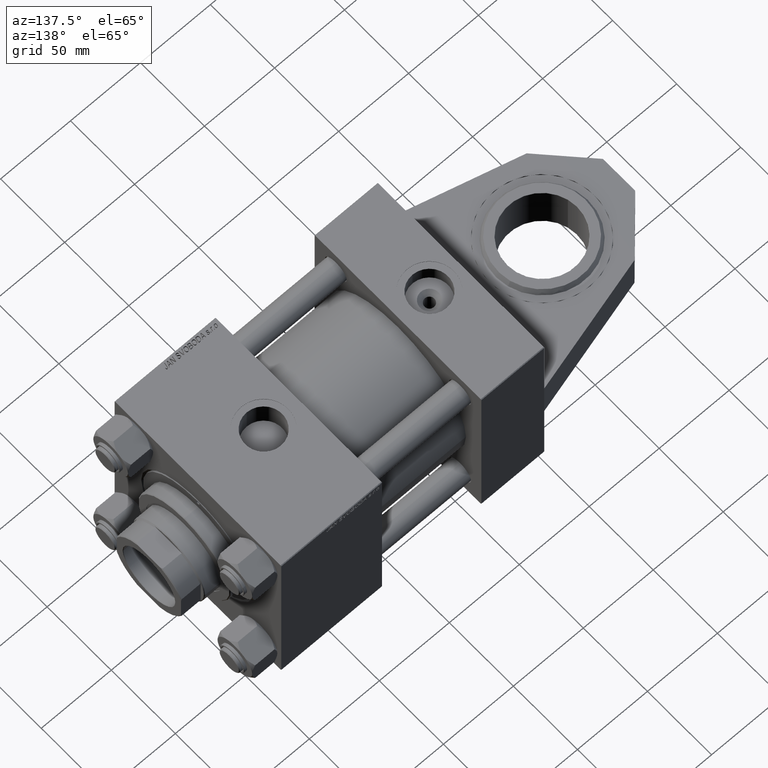
[diagram: clean part render]
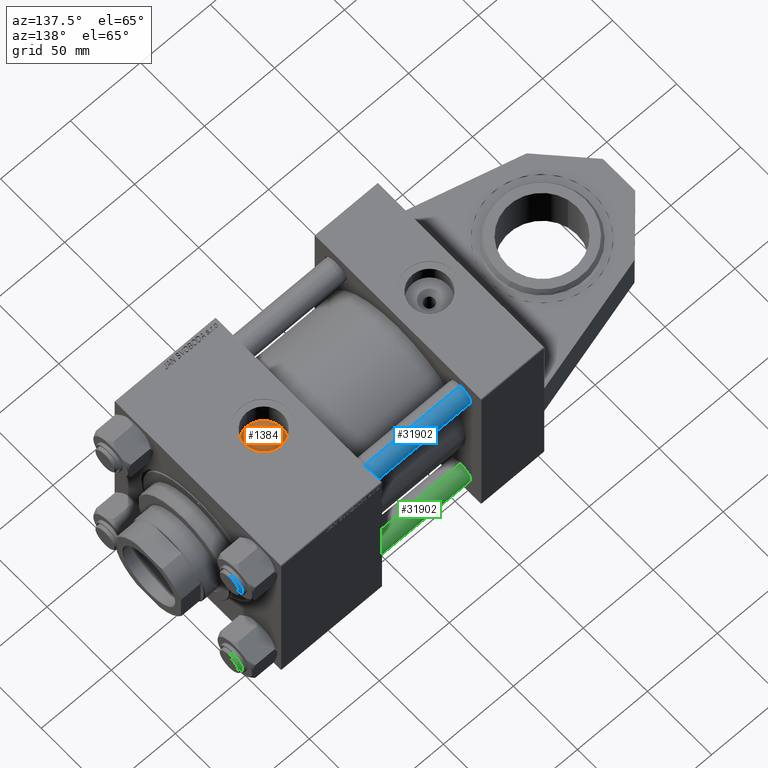
[diagram: same view with three faces highlighted in distinct colors, each labeled with its STEP entity id]
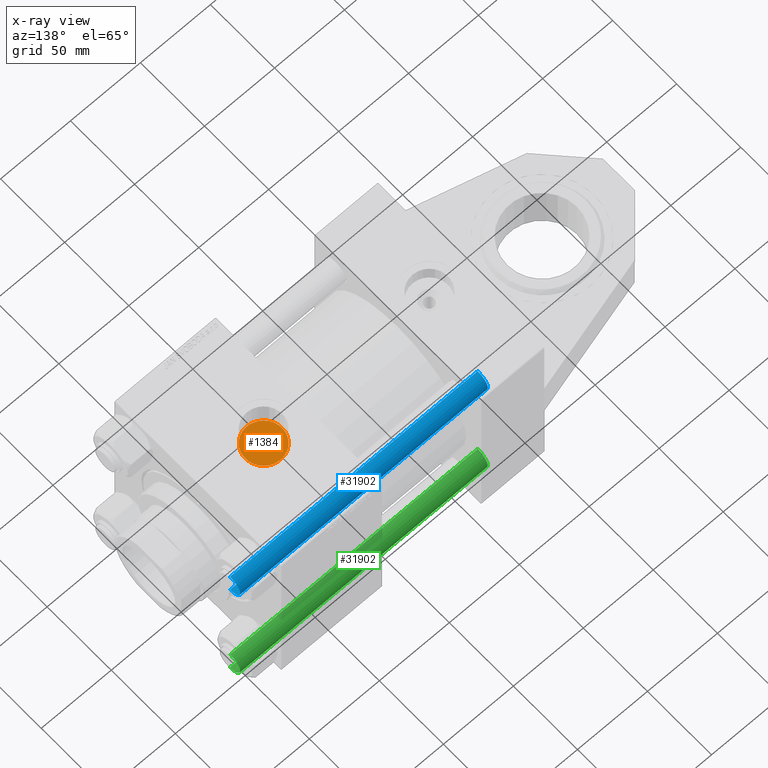
[diagram: x-ray of the same camera — body ghosted, the three highlighted faces saturated]
A machine part, auxiliary view with three faces highlighted in distinct colors.
The next image is the same camera in x-ray (body ghosted, the three faces saturated) — at least one of them is partly hidden behind the body in this view.
Their STEP definitions:

[orange] entity #1384 — the highlighted planar face has unit normal (0, 0, 1).
#1384 = ADVANCED_FACE ( 'NONE', ( #8390 ), #32620, .T. ) ;
#4378 = CARTESIAN_POINT ( 'NONE',  ( 141.0000000000000000, 47.20000000000003126, 0.000000000000000000 ) ) ;
#4430 = ORIENTED_EDGE ( 'NONE', *, *, #12504, .T. ) ;
#4750 = EDGE_LOOP ( 'NONE', ( #4430, #14478 ) ) ;
#5092 = DIRECTION ( 'NONE',  ( 0.000000000000000000, 0.000000000000000000, 1.000000000000000000 ) ) ;
#7513 = CIRCLE ( 'NONE', #23672, 13.22000000000001307 ) ;
#8390 = FACE_OUTER_BOUND ( 'NONE', #4750, .T. ) ;
#11660 = DIRECTION ( 'NONE',  ( 0.000000000000000000, 1.000000000000000000, 0.000000000000000000 ) ) ;
#12112 = CARTESIAN_POINT ( 'NONE',  ( 141.0000000000000000, 47.20000000000003126, 13.22000000000001307 ) ) ;
#12147 = VERTEX_POINT ( 'NONE', #37387 ) ;
#12504 = EDGE_CURVE ( 'NONE', #47169, #12147, #7513, .T. ) ;
#14478 = ORIENTED_EDGE ( 'NONE', *, *, #45785, .T. ) ;
#20636 = DIRECTION ( 'NONE',  ( 0.000000000000000000, 1.000000000000000000, 0.000000000000000000 ) ) ;
#23672 = AXIS2_PLACEMENT_3D ( 'NONE', #28798, #24789, #5092 ) ;
#24789 = DIRECTION ( 'NONE',  ( 0.000000000000000000, 1.000000000000000000, 0.000000000000000000 ) ) ;
#28798 = CARTESIAN_POINT ( 'NONE',  ( 141.0000000000000000, 47.20000000000003126, 0.000000000000000000 ) ) ;
#31392 = DIRECTION ( 'NONE',  ( 0.000000000000000000, 0.000000000000000000, 1.000000000000000000 ) ) ;
#32620 = PLANE ( 'NONE',  #36178 ) ;
#33375 = CIRCLE ( 'NONE', #45281, 13.22000000000001307 ) ;
#36178 = AXIS2_PLACEMENT_3D ( 'NONE', #4378, #20636, #49153 ) ;
#37387 = CARTESIAN_POINT ( 'NONE',  ( 141.0000000000000000, 47.20000000000003126, -13.22000000000001307 ) ) ;
#45281 = AXIS2_PLACEMENT_3D ( 'NONE', #48182, #11660, #31392 ) ;
#45785 = EDGE_CURVE ( 'NONE', #12147, #47169, #33375, .T. ) ;
#47169 = VERTEX_POINT ( 'NONE', #12112 ) ;
#48182 = CARTESIAN_POINT ( 'NONE',  ( 141.0000000000000000, 47.20000000000003126, 0.000000000000000000 ) ) ;
#49153 = DIRECTION ( 'NONE',  ( 0.000000000000000000, -0.000000000000000000, 1.000000000000000000 ) ) ;

[blue] entity #31902 — the highlighted cylindrical surface (edge-blend (fillet) strip) has radius 8 mm, axis along (1, 0, 0).
#34 = DIRECTION ( 'NONE',  ( 1.000000000000000000, 0.000000000000000000, 0.000000000000000000 ) ) ;
#715 = LINE ( 'NONE', #977, #22881 ) ;
#977 = CARTESIAN_POINT ( 'NONE',  ( 8.000000000000000000, 9.797174393178825657E-16, 178.0000000000000000 ) ) ;
#2568 = EDGE_CURVE ( 'NONE', #43210, #34085, #8152, .T. ) ;
#3274 = VERTEX_POINT ( 'NONE', #33240 ) ;
#5926 = CARTESIAN_POINT ( 'NONE',  ( 0.000000000000000000, 0.000000000000000000, 0.4999999999999449329 ) ) ;
#6531 = ORIENTED_EDGE ( 'NONE', *, *, #13806, .T. ) ;
#6654 = EDGE_CURVE ( 'NONE', #46837, #34085, #44707, .T. ) ;
#7945 = CARTESIAN_POINT ( 'NONE',  ( -8.000000000000000000, 0.000000000000000000, 178.0000000000000000 ) ) ;
#8152 = CIRCLE ( 'NONE', #12401, 8.000000000000000000 ) ;
#8385 = AXIS2_PLACEMENT_3D ( 'NONE', #20283, #36527, #34 ) ;
#9240 = CIRCLE ( 'NONE', #8385, 8.000000000000000000 ) ;
#12395 = VECTOR ( 'NONE', #44967, 1000.000000000000000 ) ;
#12401 = AXIS2_PLACEMENT_3D ( 'NONE', #5926, #37907, #45913 ) ;
#13517 = DIRECTION ( 'NONE',  ( -1.000000000000000000, 0.000000000000000000, 0.000000000000000000 ) ) ;
#13806 = EDGE_CURVE ( 'NONE', #3274, #43210, #715, .T. ) ;
#14562 = CARTESIAN_POINT ( 'NONE',  ( 0.000000000000000000, 0.000000000000000000, 178.0000000000000000 ) ) ;
#14749 = ORIENTED_EDGE ( 'NONE', *, *, #2568, .T. ) ;
#14888 = CARTESIAN_POINT ( 'NONE',  ( -8.000000000000000000, 0.000000000000000000, 177.5000000000000284 ) ) ;
#14976 = EDGE_LOOP ( 'NONE', ( #44372, #6531, #14749, #24663 ) ) ;
#16811 = EDGE_CURVE ( 'NONE', #46837, #3274, #9240, .T. ) ;
#20283 = CARTESIAN_POINT ( 'NONE',  ( 0.000000000000000000, 0.000000000000000000, 177.5000000000000284 ) ) ;
#22053 = CYLINDRICAL_SURFACE ( 'NONE', #49690, 8.000000000000000000 ) ;
#22881 = VECTOR ( 'NONE', #41746, 1000.000000000000000 ) ;
#24663 = ORIENTED_EDGE ( 'NONE', *, *, #6654, .F. ) ;
#29207 = CARTESIAN_POINT ( 'NONE',  ( 8.000000000000000000, 9.797174393178825657E-16, 0.4999999999999449329 ) ) ;
#31902 = ADVANCED_FACE ( 'NONE', ( #34831 ), #22053, .T. ) ;
#32785 = CARTESIAN_POINT ( 'NONE',  ( -8.000000000000000000, 0.000000000000000000, 0.4999999999999449329 ) ) ;
#33240 = CARTESIAN_POINT ( 'NONE',  ( 8.000000000000000000, 9.797174393178825657E-16, 177.5000000000000284 ) ) ;
#34085 = VERTEX_POINT ( 'NONE', #32785 ) ;
#34831 = FACE_OUTER_BOUND ( 'NONE', #14976, .T. ) ;
#36527 = DIRECTION ( 'NONE',  ( 0.000000000000000000, 0.000000000000000000, -1.000000000000000000 ) ) ;
#37907 = DIRECTION ( 'NONE',  ( -0.000000000000000000, -0.000000000000000000, 1.000000000000000000 ) ) ;
#41746 = DIRECTION ( 'NONE',  ( -0.000000000000000000, -0.000000000000000000, -1.000000000000000000 ) ) ;
#42833 = DIRECTION ( 'NONE',  ( -0.000000000000000000, -0.000000000000000000, -1.000000000000000000 ) ) ;
#43210 = VERTEX_POINT ( 'NONE', #29207 ) ;
#44372 = ORIENTED_EDGE ( 'NONE', *, *, #16811, .T. ) ;
#44707 = LINE ( 'NONE', #7945, #12395 ) ;
#44967 = DIRECTION ( 'NONE',  ( -0.000000000000000000, -0.000000000000000000, -1.000000000000000000 ) ) ;
#45913 = DIRECTION ( 'NONE',  ( 1.000000000000000000, 0.000000000000000000, 0.000000000000000000 ) ) ;
#46837 = VERTEX_POINT ( 'NONE', #14888 ) ;
#49690 = AXIS2_PLACEMENT_3D ( 'NONE', #14562, #42833, #13517 ) ;

[green] entity #31902 — the highlighted cylindrical surface (edge-blend (fillet) strip) has radius 8 mm, axis along (-1, -0, 0).
#34 = DIRECTION ( 'NONE',  ( 1.000000000000000000, 0.000000000000000000, 0.000000000000000000 ) ) ;
#715 = LINE ( 'NONE', #977, #22881 ) ;
#977 = CARTESIAN_POINT ( 'NONE',  ( 8.000000000000000000, 9.797174393178825657E-16, 178.0000000000000000 ) ) ;
#2568 = EDGE_CURVE ( 'NONE', #43210, #34085, #8152, .T. ) ;
#3274 = VERTEX_POINT ( 'NONE', #33240 ) ;
#5926 = CARTESIAN_POINT ( 'NONE',  ( 0.000000000000000000, 0.000000000000000000, 0.4999999999999449329 ) ) ;
#6531 = ORIENTED_EDGE ( 'NONE', *, *, #13806, .T. ) ;
#6654 = EDGE_CURVE ( 'NONE', #46837, #34085, #44707, .T. ) ;
#7945 = CARTESIAN_POINT ( 'NONE',  ( -8.000000000000000000, 0.000000000000000000, 178.0000000000000000 ) ) ;
#8152 = CIRCLE ( 'NONE', #12401, 8.000000000000000000 ) ;
#8385 = AXIS2_PLACEMENT_3D ( 'NONE', #20283, #36527, #34 ) ;
#9240 = CIRCLE ( 'NONE', #8385, 8.000000000000000000 ) ;
#12395 = VECTOR ( 'NONE', #44967, 1000.000000000000000 ) ;
#12401 = AXIS2_PLACEMENT_3D ( 'NONE', #5926, #37907, #45913 ) ;
#13517 = DIRECTION ( 'NONE',  ( -1.000000000000000000, 0.000000000000000000, 0.000000000000000000 ) ) ;
#13806 = EDGE_CURVE ( 'NONE', #3274, #43210, #715, .T. ) ;
#14562 = CARTESIAN_POINT ( 'NONE',  ( 0.000000000000000000, 0.000000000000000000, 178.0000000000000000 ) ) ;
#14749 = ORIENTED_EDGE ( 'NONE', *, *, #2568, .T. ) ;
#14888 = CARTESIAN_POINT ( 'NONE',  ( -8.000000000000000000, 0.000000000000000000, 177.5000000000000284 ) ) ;
#14976 = EDGE_LOOP ( 'NONE', ( #44372, #6531, #14749, #24663 ) ) ;
#16811 = EDGE_CURVE ( 'NONE', #46837, #3274, #9240, .T. ) ;
#20283 = CARTESIAN_POINT ( 'NONE',  ( 0.000000000000000000, 0.000000000000000000, 177.5000000000000284 ) ) ;
#22053 = CYLINDRICAL_SURFACE ( 'NONE', #49690, 8.000000000000000000 ) ;
#22881 = VECTOR ( 'NONE', #41746, 1000.000000000000000 ) ;
#24663 = ORIENTED_EDGE ( 'NONE', *, *, #6654, .F. ) ;
#29207 = CARTESIAN_POINT ( 'NONE',  ( 8.000000000000000000, 9.797174393178825657E-16, 0.4999999999999449329 ) ) ;
#31902 = ADVANCED_FACE ( 'NONE', ( #34831 ), #22053, .T. ) ;
#32785 = CARTESIAN_POINT ( 'NONE',  ( -8.000000000000000000, 0.000000000000000000, 0.4999999999999449329 ) ) ;
#33240 = CARTESIAN_POINT ( 'NONE',  ( 8.000000000000000000, 9.797174393178825657E-16, 177.5000000000000284 ) ) ;
#34085 = VERTEX_POINT ( 'NONE', #32785 ) ;
#34831 = FACE_OUTER_BOUND ( 'NONE', #14976, .T. ) ;
#36527 = DIRECTION ( 'NONE',  ( 0.000000000000000000, 0.000000000000000000, -1.000000000000000000 ) ) ;
#37907 = DIRECTION ( 'NONE',  ( -0.000000000000000000, -0.000000000000000000, 1.000000000000000000 ) ) ;
#41746 = DIRECTION ( 'NONE',  ( -0.000000000000000000, -0.000000000000000000, -1.000000000000000000 ) ) ;
#42833 = DIRECTION ( 'NONE',  ( -0.000000000000000000, -0.000000000000000000, -1.000000000000000000 ) ) ;
#43210 = VERTEX_POINT ( 'NONE', #29207 ) ;
#44372 = ORIENTED_EDGE ( 'NONE', *, *, #16811, .T. ) ;
#44707 = LINE ( 'NONE', #7945, #12395 ) ;
#44967 = DIRECTION ( 'NONE',  ( -0.000000000000000000, -0.000000000000000000, -1.000000000000000000 ) ) ;
#45913 = DIRECTION ( 'NONE',  ( 1.000000000000000000, 0.000000000000000000, 0.000000000000000000 ) ) ;
#46837 = VERTEX_POINT ( 'NONE', #14888 ) ;
#49690 = AXIS2_PLACEMENT_3D ( 'NONE', #14562, #42833, #13517 ) ;